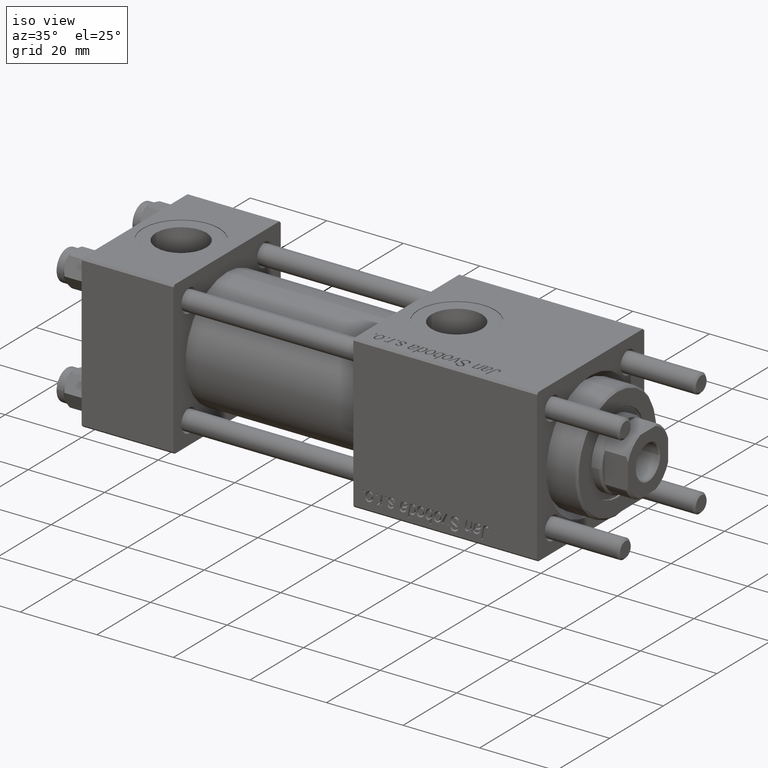
[diagram: clean part render]
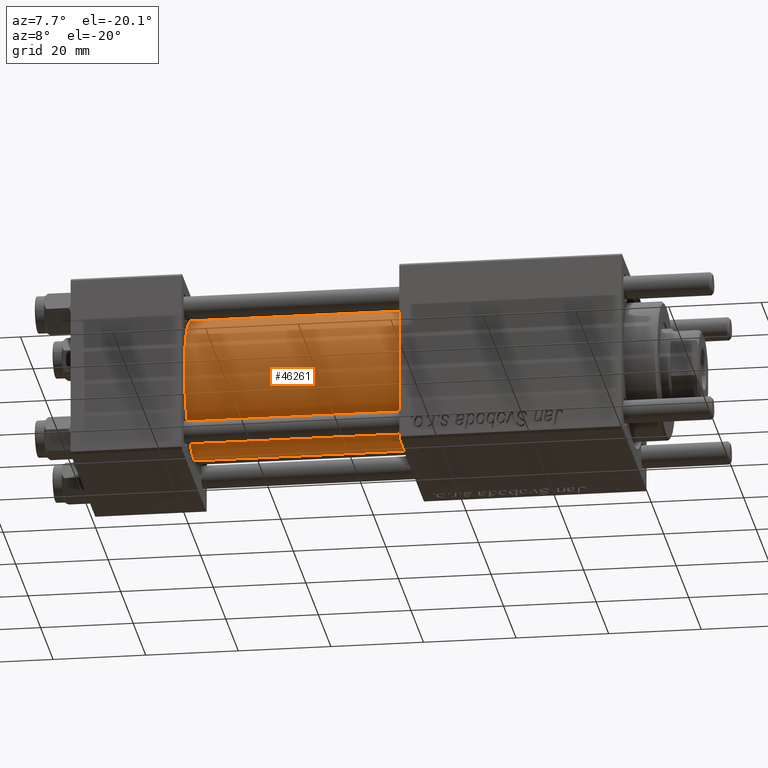
[diagram: tour spotlight — one face highlighted and labeled with its STEP entity id]
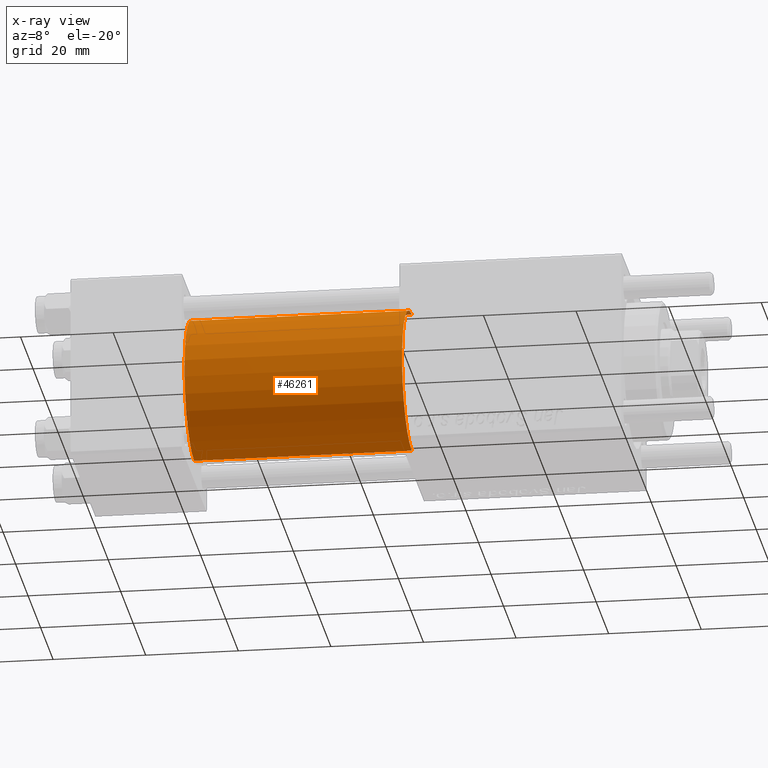
[diagram: x-ray of the same camera — body ghosted, this tour face saturated]
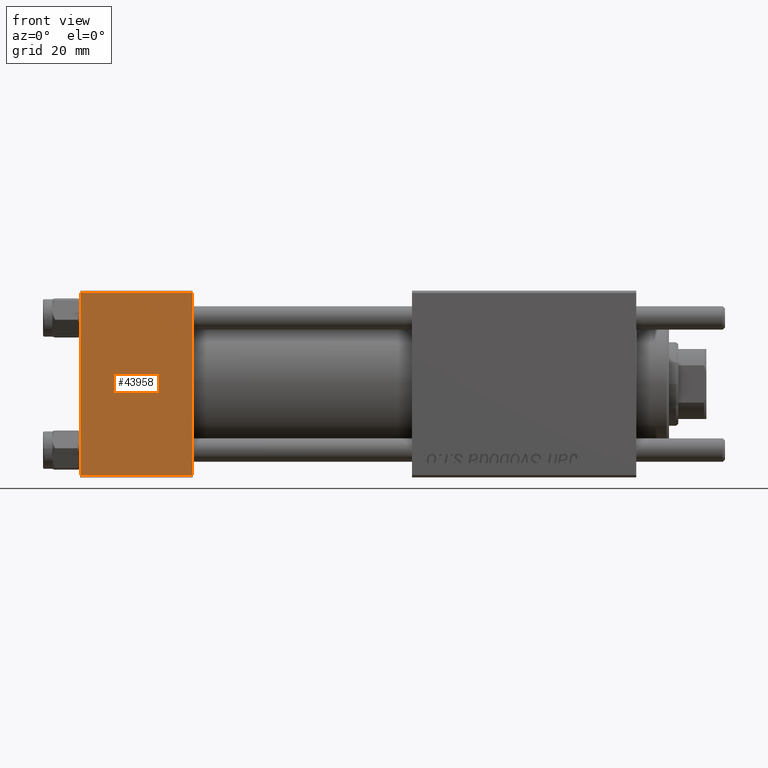
[diagram: tour spotlight — one face highlighted and labeled with its STEP entity id]
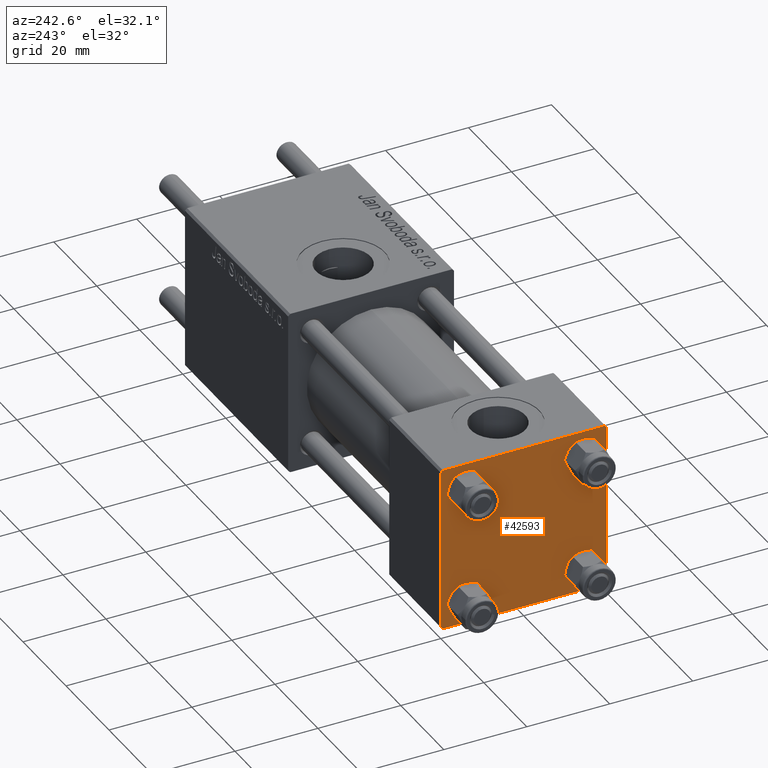
[diagram: tour spotlight — one face highlighted and labeled with its STEP entity id]
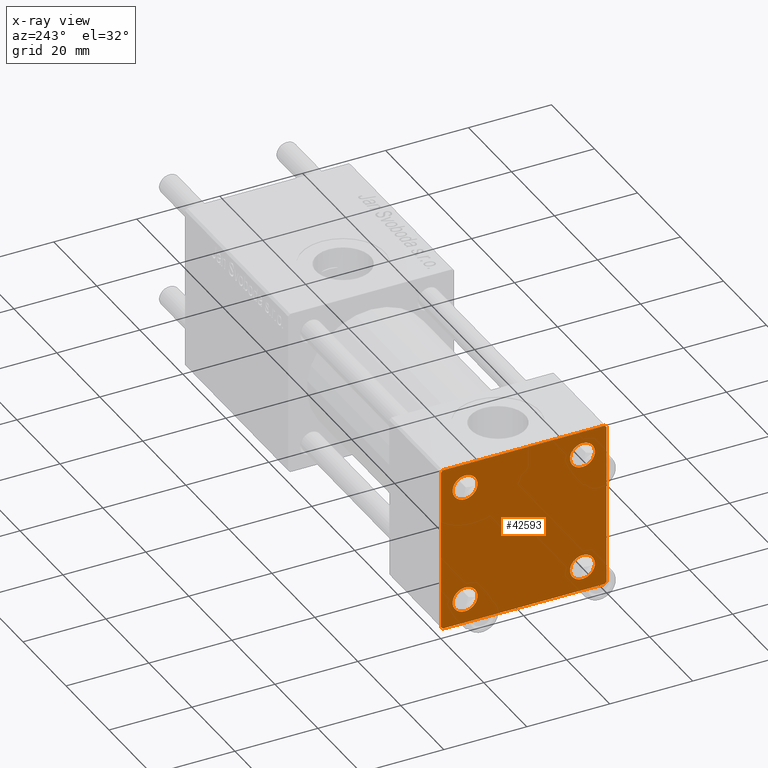
[diagram: x-ray of the same camera — body ghosted, this tour face saturated]
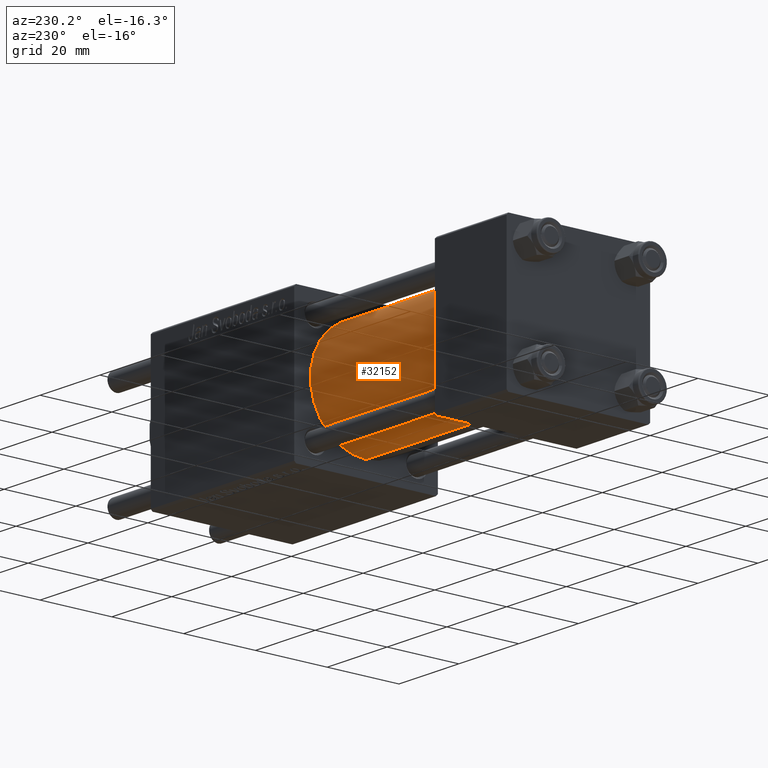
[diagram: tour spotlight — one face highlighted and labeled with its STEP entity id]
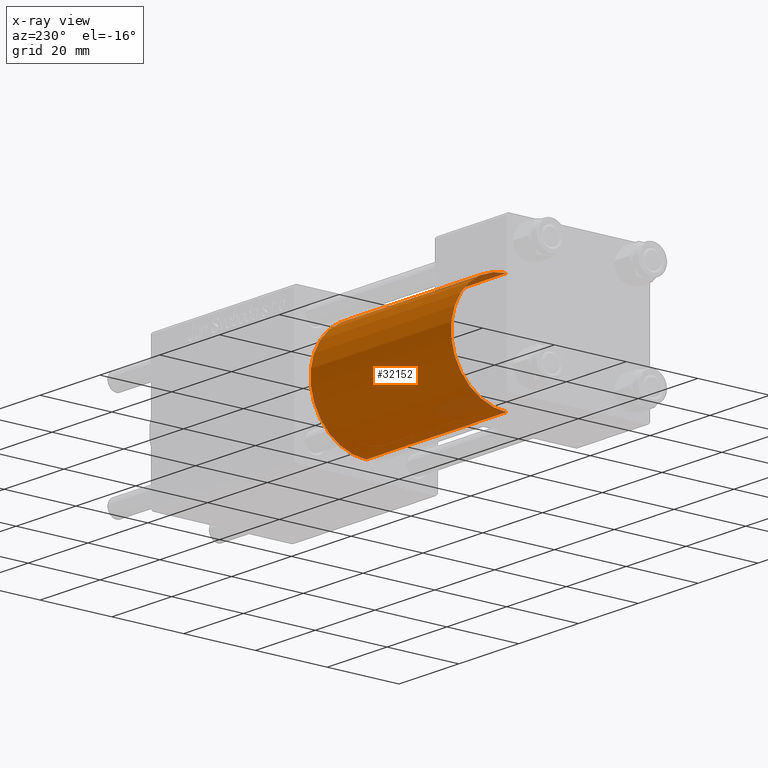
[diagram: x-ray of the same camera — body ghosted, this tour face saturated]
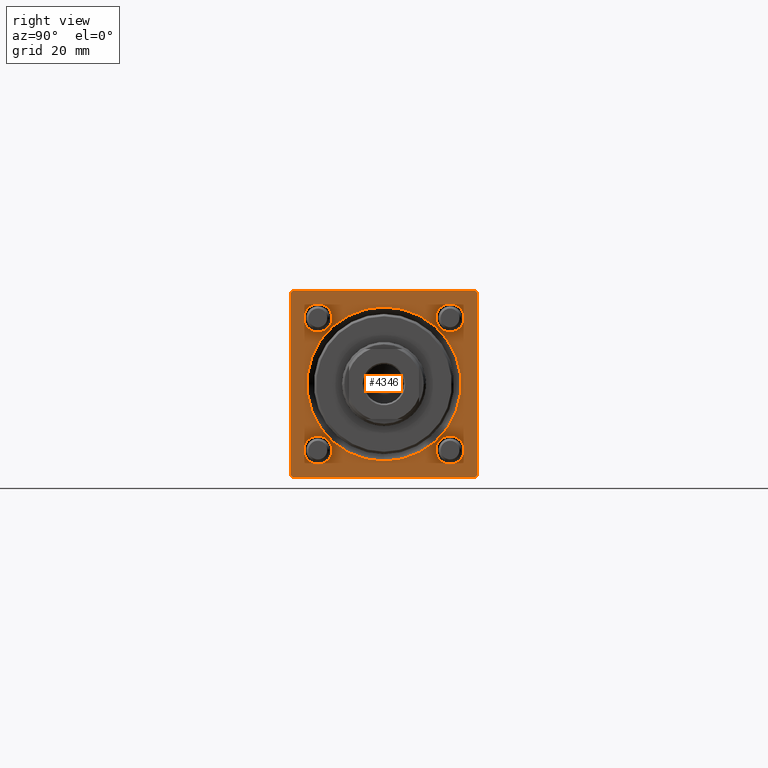
[diagram: tour spotlight — one face highlighted and labeled with its STEP entity id]
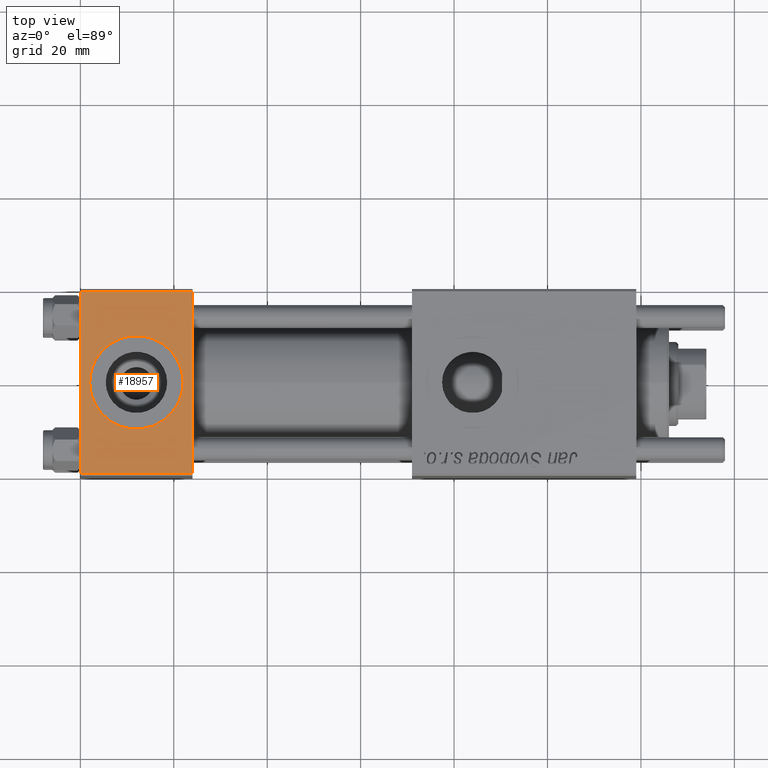
[diagram: tour spotlight — one face highlighted and labeled with its STEP entity id]
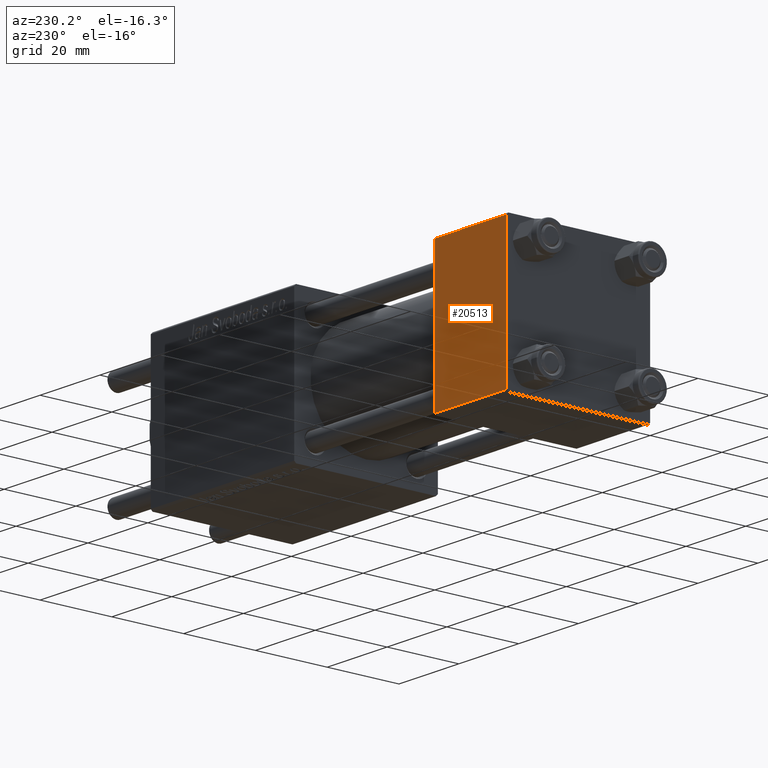
[diagram: tour spotlight — one face highlighted and labeled with its STEP entity id]
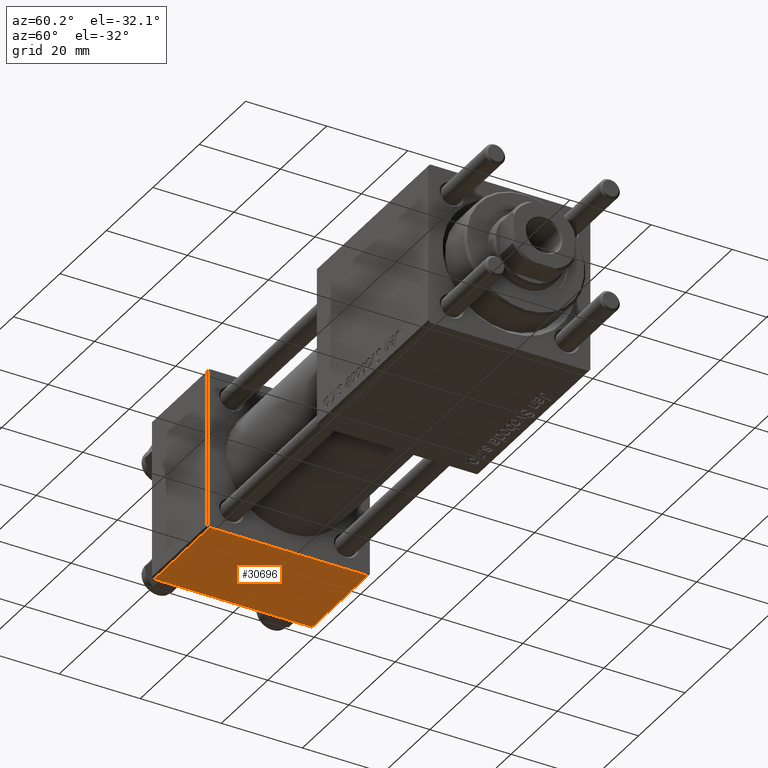
[diagram: tour spotlight — one face highlighted and labeled with its STEP entity id]
A machine part: a face-by-face anatomy tour. The part has 1152 B-rep faces; the first image is the clean iso view, then the 8 largest visible faces are spotlighted one at a time (largest first), each with its STEP entity span.

Face 1 — auxiliary view, entity #46261. An x-ray twin of the same camera follows (body ghosted, this face saturated) — the face is partly hidden behind the body. In plain terms, the highlighted cylindrical surface (partial cylindrical patch) has radius 15.5 mm, axis along (-1, -0, -0).
Definition (entity closure, byte-faithful):
#1520 = DIRECTION ( 'NONE',  ( 0.000000000000000000, 0.000000000000000000, -1.000000000000000000 ) ) ;
#1575 = VERTEX_POINT ( 'NONE', #15069 ) ;
#2191 = AXIS2_PLACEMENT_3D ( 'NONE', #39982, #22784, #26535 ) ;
#3219 = CARTESIAN_POINT ( 'NONE',  ( 71.00000000000001421, -2.602085213965210642E-15, 15.50000000000000000 ) ) ;
#3300 = CARTESIAN_POINT ( 'NONE',  ( 24.00000000000000000, -2.602085213965210642E-15, 0.000000000000000000 ) ) ;
#3892 = VECTOR ( 'NONE', #22242, 1000.000000000000000 ) ;
#3900 = ORIENTED_EDGE ( 'NONE', *, *, #30255, .F. ) ;
#4442 = CIRCLE ( 'NONE', #31012, 15.50000000000000000 ) ;
#6633 = VERTEX_POINT ( 'NONE', #13602 ) ;
#6736 = EDGE_LOOP ( 'NONE', ( #3900, #23735, #55323, #42789 ) ) ;
#8081 = AXIS2_PLACEMENT_3D ( 'NONE', #32490, #41366, #1520 ) ;
#9607 = CARTESIAN_POINT ( 'NONE',  ( 71.00000000000001421, -7.038826752868131828E-16, -15.50000000000000000 ) ) ;
#10623 = EDGE_CURVE ( 'NONE', #24310, #18320, #16311, .T. ) ;
#12176 = EDGE_CURVE ( 'NONE', #1575, #6633, #4442, .T. ) ;
#12392 = LINE ( 'NONE', #3219, #48829 ) ;
#13602 = CARTESIAN_POINT ( 'NONE',  ( 24.00000000000000000, -7.038826752868131828E-16, -15.50000000000000000 ) ) ;
#15069 = CARTESIAN_POINT ( 'NONE',  ( 24.00000000000000000, -2.602085213965210642E-15, 15.50000000000000000 ) ) ;
#16311 = CIRCLE ( 'NONE', #8081, 15.50000000000000000 ) ;
#18320 = VERTEX_POINT ( 'NONE', #44086 ) ;
#21952 = FACE_OUTER_BOUND ( 'NONE', #6736, .T. ) ;
#22242 = DIRECTION ( 'NONE',  ( -1.000000000000000000, -0.000000000000000000, -0.000000000000000000 ) ) ;
#22522 = LINE ( 'NONE', #9607, #3892 ) ;
#22627 = CARTESIAN_POINT ( 'NONE',  ( 71.00000000000001421, -2.602085213965210642E-15, 15.50000000000000000 ) ) ;
#22784 = DIRECTION ( 'NONE',  ( -1.000000000000000000, -0.000000000000000000, -0.000000000000000000 ) ) ;
#23735 = ORIENTED_EDGE ( 'NONE', *, *, #10623, .F. ) ;
#24310 = VERTEX_POINT ( 'NONE', #22627 ) ;
#26535 = DIRECTION ( 'NONE',  ( 0.000000000000000000, 0.000000000000000000, 1.000000000000000000 ) ) ;
#30255 = EDGE_CURVE ( 'NONE', #18320, #6633, #22522, .T. ) ;
#31012 = AXIS2_PLACEMENT_3D ( 'NONE', #3300, #34548, #46876 ) ;
#31982 = EDGE_CURVE ( 'NONE', #24310, #1575, #12392, .T. ) ;
#32490 = CARTESIAN_POINT ( 'NONE',  ( 71.00000000000001421, -2.602085213965210642E-15, 0.000000000000000000 ) ) ;
#34548 = DIRECTION ( 'NONE',  ( 1.000000000000000000, 0.000000000000000000, 0.000000000000000000 ) ) ;
#39982 = CARTESIAN_POINT ( 'NONE',  ( 71.00000000000001421, -2.602085213965210642E-15, 0.000000000000000000 ) ) ;
#41366 = DIRECTION ( 'NONE',  ( 1.000000000000000000, 0.000000000000000000, 0.000000000000000000 ) ) ;
#41923 = DIRECTION ( 'NONE',  ( -1.000000000000000000, -0.000000000000000000, -0.000000000000000000 ) ) ;
#42789 = ORIENTED_EDGE ( 'NONE', *, *, #12176, .T. ) ;
#44086 = CARTESIAN_POINT ( 'NONE',  ( 71.00000000000001421, -7.038826752868131828E-16, -15.50000000000000000 ) ) ;
#44557 = CYLINDRICAL_SURFACE ( 'NONE', #2191, 15.50000000000000000 ) ;
#46261 = ADVANCED_FACE ( 'NONE', ( #21952 ), #44557, .T. ) ;
#46876 = DIRECTION ( 'NONE',  ( 0.000000000000000000, 0.000000000000000000, 1.000000000000000000 ) ) ;
#48829 = VECTOR ( 'NONE', #41923, 1000.000000000000000 ) ;
#55323 = ORIENTED_EDGE ( 'NONE', *, *, #31982, .T. ) ;

Face 2 — front view, entity #43958. In plain terms, the highlighted planar face has unit normal (0, 1, 0).
Definition (entity closure, byte-faithful):
#9530 = VECTOR ( 'NONE', #53173, 1000.000000000000000 ) ;
#11225 = VERTEX_POINT ( 'NONE', #55246 ) ;
#13864 = CARTESIAN_POINT ( 'NONE',  ( 24.00000000000000000, -20.00000000000000355, 19.99999999999998934 ) ) ;
#14322 = LINE ( 'NONE', #45272, #30587 ) ;
#15656 = CARTESIAN_POINT ( 'NONE',  ( 0.000000000000000000, -20.00000000000000355, 19.49999999999998224 ) ) ;
#16595 = CARTESIAN_POINT ( 'NONE',  ( 0.000000000000000000, -20.00000000000000355, 19.99999999999998934 ) ) ;
#19476 = DIRECTION ( 'NONE',  ( 0.000000000000000000, 8.673617379884036705E-17, -1.000000000000000000 ) ) ;
#20328 = LINE ( 'NONE', #16595, #33313 ) ;
#21492 = EDGE_CURVE ( 'NONE', #47087, #11225, #37332, .T. ) ;
#24048 = ORIENTED_EDGE ( 'NONE', *, *, #46276, .T. ) ;
#27162 = EDGE_LOOP ( 'NONE', ( #32902, #30567, #30300, #24048 ) ) ;
#30300 = ORIENTED_EDGE ( 'NONE', *, *, #40104, .F. ) ;
#30567 = ORIENTED_EDGE ( 'NONE', *, *, #21492, .T. ) ;
#30587 = VECTOR ( 'NONE', #19476, 1000.000000000000000 ) ;
#31117 = LINE ( 'NONE', #35693, #9530 ) ;
#31357 = DIRECTION ( 'NONE',  ( -0.000000000000000000, 1.000000000000000000, 8.673617379884036705E-17 ) ) ;
#32902 = ORIENTED_EDGE ( 'NONE', *, *, #44213, .T. ) ;
#33313 = VECTOR ( 'NONE', #34094, 1000.000000000000000 ) ;
#33516 = VERTEX_POINT ( 'NONE', #15656 ) ;
#34094 = DIRECTION ( 'NONE',  ( 0.000000000000000000, 8.673617379884036705E-17, -1.000000000000000000 ) ) ;
#35664 = FACE_OUTER_BOUND ( 'NONE', #27162, .T. ) ;
#35693 = CARTESIAN_POINT ( 'NONE',  ( 24.00000000000000000, -20.00000000000000355, 19.49999999999998224 ) ) ;
#36748 = CARTESIAN_POINT ( 'NONE',  ( 24.00000000000000000, -20.00000000000000000, -19.49999999999999645 ) ) ;
#36840 = CARTESIAN_POINT ( 'NONE',  ( 0.000000000000000000, -20.00000000000000000, -19.49999999999999645 ) ) ;
#37332 = LINE ( 'NONE', #36748, #51383 ) ;
#40104 = EDGE_CURVE ( 'NONE', #51255, #11225, #14322, .T. ) ;
#43958 = ADVANCED_FACE ( 'NONE', ( #35664 ), #53146, .F. ) ;
#44213 = EDGE_CURVE ( 'NONE', #33516, #47087, #20328, .T. ) ;
#44803 = DIRECTION ( 'NONE',  ( 0.000000000000000000, -8.673617379884036705E-17, 1.000000000000000000 ) ) ;
#45272 = CARTESIAN_POINT ( 'NONE',  ( 24.00000000000000000, -20.00000000000000355, 19.99999999999998934 ) ) ;
#46276 = EDGE_CURVE ( 'NONE', #51255, #33516, #31117, .T. ) ;
#47087 = VERTEX_POINT ( 'NONE', #36840 ) ;
#50218 = DIRECTION ( 'NONE',  ( 1.000000000000000000, 0.000000000000000000, 0.000000000000000000 ) ) ;
#51255 = VERTEX_POINT ( 'NONE', #56409 ) ;
#51383 = VECTOR ( 'NONE', #50218, 1000.000000000000000 ) ;
#53146 = PLANE ( 'NONE',  #54330 ) ;
#53173 = DIRECTION ( 'NONE',  ( -1.000000000000000000, 0.000000000000000000, 0.000000000000000000 ) ) ;
#54330 = AXIS2_PLACEMENT_3D ( 'NONE', #13864, #31357, #44803 ) ;
#55246 = CARTESIAN_POINT ( 'NONE',  ( 24.00000000000000000, -20.00000000000000000, -19.49999999999999645 ) ) ;
#56409 = CARTESIAN_POINT ( 'NONE',  ( 24.00000000000000000, -20.00000000000000355, 19.49999999999998224 ) ) ;

Face 3 — auxiliary view, entity #42593. An x-ray twin of the same camera follows (body ghosted, this face saturated) — the face is partly hidden behind the body. In plain terms, the highlighted planar face has unit normal (-1, 0, 0).
Definition (entity closure, byte-faithful):
#36 = VERTEX_POINT ( 'NONE', #17544 ) ;
#282 = VERTEX_POINT ( 'NONE', #51337 ) ;
#729 = CARTESIAN_POINT ( 'NONE',  ( 0.000000000000000000, -14.14999999999999503, 17.14999999999998792 ) ) ;
#755 = DIRECTION ( 'NONE',  ( 0.000000000000000000, -1.000000000000000000, -2.602085213965210149E-16 ) ) ;
#970 = ORIENTED_EDGE ( 'NONE', *, *, #38393, .T. ) ;
#1861 = VERTEX_POINT ( 'NONE', #29064 ) ;
#2283 = EDGE_LOOP ( 'NONE', ( #30718, #970 ) ) ;
#3073 = CIRCLE ( 'NONE', #35128, 2.999999999999983569 ) ;
#3629 = FACE_BOUND ( 'NONE', #22433, .T. ) ;
#3967 = DIRECTION ( 'NONE',  ( 0.000000000000000000, 0.000000000000000000, 1.000000000000000000 ) ) ;
#3984 = VERTEX_POINT ( 'NONE', #10047 ) ;
#4124 = DIRECTION ( 'NONE',  ( 1.000000000000000000, 0.000000000000000000, 0.000000000000000000 ) ) ;
#4478 = DIRECTION ( 'NONE',  ( 0.000000000000000000, 0.000000000000000000, 1.000000000000000000 ) ) ;
#4913 = CARTESIAN_POINT ( 'NONE',  ( 0.000000000000000000, -19.75000000000020961, -19.74999999999979394 ) ) ;
#4985 = DIRECTION ( 'NONE',  ( 0.000000000000000000, 0.000000000000000000, 1.000000000000000000 ) ) ;
#5290 = VERTEX_POINT ( 'NONE', #44451 ) ;
#6593 = DIRECTION ( 'NONE',  ( 0.000000000000000000, 0.000000000000000000, 1.000000000000000000 ) ) ;
#6880 = CARTESIAN_POINT ( 'NONE',  ( 0.000000000000000000, -14.14999999999999503, 14.15000000000000391 ) ) ;
#7182 = AXIS2_PLACEMENT_3D ( 'NONE', #38762, #29884, #37921 ) ;
#7475 = CARTESIAN_POINT ( 'NONE',  ( 0.000000000000000000, 14.14999999999999858, -17.14999999999998437 ) ) ;
#7772 = AXIS2_PLACEMENT_3D ( 'NONE', #6880, #41859, #6593 ) ;
#8435 = CARTESIAN_POINT ( 'NONE',  ( 0.000000000000000000, 20.00000000000000000, -19.50000000000002132 ) ) ;
#8493 = FACE_OUTER_BOUND ( 'NONE', #19421, .T. ) ;
#8724 = CARTESIAN_POINT ( 'NONE',  ( 0.000000000000000000, 20.00000000000000000, 20.00000000000000000 ) ) ;
#8802 = EDGE_CURVE ( 'NONE', #51592, #28984, #18950, .T. ) ;
#9027 = ORIENTED_EDGE ( 'NONE', *, *, #12365, .T. ) ;
#9067 = CIRCLE ( 'NONE', #9952, 3.000000000000004441 ) ;
#9072 = LINE ( 'NONE', #9630, #16632 ) ;
#9378 = LINE ( 'NONE', #44622, #42371 ) ;
#9630 = CARTESIAN_POINT ( 'NONE',  ( -0.000000000000000000, -19.74999999999992539, 19.75000000000006395 ) ) ;
#9887 = CARTESIAN_POINT ( 'NONE',  ( 0.000000000000000000, -19.49999999999999289, 19.99999999999998934 ) ) ;
#9908 = CARTESIAN_POINT ( 'NONE',  ( 0.000000000000000000, -19.50000000000000711, -20.00000000000000000 ) ) ;
#9952 = AXIS2_PLACEMENT_3D ( 'NONE', #56150, #43241, #3967 ) ;
#9997 = AXIS2_PLACEMENT_3D ( 'NONE', #32508, #40535, #18753 ) ;
#10047 = CARTESIAN_POINT ( 'NONE',  ( 0.000000000000000000, 14.14999999999999858, 11.15000000000001990 ) ) ;
#10505 = AXIS2_PLACEMENT_3D ( 'NONE', #13358, #56655, #25992 ) ;
#10777 = CARTESIAN_POINT ( 'NONE',  ( 0.000000000000000000, 14.14999999999999858, -11.15000000000001812 ) ) ;
#12365 = EDGE_CURVE ( 'NONE', #35136, #282, #34653, .T. ) ;
#13014 = DIRECTION ( 'NONE',  ( 0.000000000000000000, 0.000000000000000000, 1.000000000000000000 ) ) ;
#13228 = DIRECTION ( 'NONE',  ( -0.000000000000000000, -0.7071067811865524577, -0.7071067811865426878 ) ) ;
#13358 = CARTESIAN_POINT ( 'NONE',  ( 0.000000000000000000, 0.000000000000000000, 0.000000000000000000 ) ) ;
#13398 = DIRECTION ( 'NONE',  ( 0.000000000000000000, 0.7071067811865425767, -0.7071067811865525687 ) ) ;
#13651 = DIRECTION ( 'NONE',  ( -0.000000000000000000, 0.7071067811865500152, 0.7071067811865451302 ) ) ;
#14233 = EDGE_CURVE ( 'NONE', #44206, #5290, #9067, .T. ) ;
#14941 = ORIENTED_EDGE ( 'NONE', *, *, #35422, .T. ) ;
#15135 = EDGE_CURVE ( 'NONE', #1861, #15364, #46361, .T. ) ;
#15364 = VERTEX_POINT ( 'NONE', #9908 ) ;
#15432 = AXIS2_PLACEMENT_3D ( 'NONE', #48575, #44254, #4985 ) ;
#15656 = CARTESIAN_POINT ( 'NONE',  ( 0.000000000000000000, -20.00000000000000355, 19.49999999999998224 ) ) ;
#16172 = EDGE_CURVE ( 'NONE', #42616, #3984, #18259, .T. ) ;
#16328 = CARTESIAN_POINT ( 'NONE',  ( 0.000000000000000000, -14.14999999999999503, -14.15000000000000391 ) ) ;
#16595 = CARTESIAN_POINT ( 'NONE',  ( 0.000000000000000000, -20.00000000000000355, 19.99999999999998934 ) ) ;
#16632 = VECTOR ( 'NONE', #13651, 1000.000000000000114 ) ;
#17256 = DIRECTION ( 'NONE',  ( 0.000000000000000000, -0.7071067811865401342, 0.7071067811865549002 ) ) ;
#17376 = PLANE ( 'NONE',  #10505 ) ;
#17544 = CARTESIAN_POINT ( 'NONE',  ( 0.000000000000000000, 20.00000000000000000, 19.49999999999999289 ) ) ;
#17963 = VERTEX_POINT ( 'NONE', #9887 ) ;
#18259 = CIRCLE ( 'NONE', #9997, 2.999999999999983569 ) ;
#18753 = DIRECTION ( 'NONE',  ( 0.000000000000000000, 0.000000000000000000, 1.000000000000000000 ) ) ;
#18829 = EDGE_LOOP ( 'NONE', ( #9027, #46209 ) ) ;
#18950 = CIRCLE ( 'NONE', #7182, 2.999999999999983569 ) ;
#19421 = EDGE_LOOP ( 'NONE', ( #51367, #45039, #28675, #30994, #21592, #31822, #49010, #33866 ) ) ;
#20129 = EDGE_CURVE ( 'NONE', #31654, #1861, #43902, .T. ) ;
#20328 = LINE ( 'NONE', #16595, #33313 ) ;
#20955 = VERTEX_POINT ( 'NONE', #34298 ) ;
#21578 = VECTOR ( 'NONE', #21927, 1000.000000000000000 ) ;
#21592 = ORIENTED_EDGE ( 'NONE', *, *, #44213, .F. ) ;
#21927 = DIRECTION ( 'NONE',  ( 0.000000000000000000, 0.000000000000000000, -1.000000000000000000 ) ) ;
#22433 = EDGE_LOOP ( 'NONE', ( #25935, #48011 ) ) ;
#22923 = EDGE_CURVE ( 'NONE', #33516, #17963, #9072, .T. ) ;
#23871 = VECTOR ( 'NONE', #13228, 1000.000000000000000 ) ;
#25347 = EDGE_CURVE ( 'NONE', #20955, #36, #9378, .T. ) ;
#25935 = ORIENTED_EDGE ( 'NONE', *, *, #35108, .T. ) ;
#25992 = DIRECTION ( 'NONE',  ( -0.000000000000000000, 0.000000000000000000, 1.000000000000000000 ) ) ;
#26278 = DIRECTION ( 'NONE',  ( 1.000000000000000000, 0.000000000000000000, 0.000000000000000000 ) ) ;
#26776 = CARTESIAN_POINT ( 'NONE',  ( 0.000000000000000000, 14.14999999999999858, -14.15000000000000036 ) ) ;
#26943 = AXIS2_PLACEMENT_3D ( 'NONE', #26776, #4124, #13014 ) ;
#28675 = ORIENTED_EDGE ( 'NONE', *, *, #15135, .T. ) ;
#28984 = VERTEX_POINT ( 'NONE', #7475 ) ;
#29064 = CARTESIAN_POINT ( 'NONE',  ( 0.000000000000000000, 19.50000000000000711, -20.00000000000000711 ) ) ;
#29248 = VECTOR ( 'NONE', #33761, 1000.000000000000000 ) ;
#29267 = DIRECTION ( 'NONE',  ( 1.000000000000000000, 0.000000000000000000, 0.000000000000000000 ) ) ;
#29556 = DIRECTION ( 'NONE',  ( 0.000000000000000000, 0.000000000000000000, 1.000000000000000000 ) ) ;
#29884 = DIRECTION ( 'NONE',  ( 1.000000000000000000, 0.000000000000000000, 0.000000000000000000 ) ) ;
#30446 = CARTESIAN_POINT ( 'NONE',  ( 0.000000000000000000, -14.14999999999999503, -17.15000000000000924 ) ) ;
#30718 = ORIENTED_EDGE ( 'NONE', *, *, #16172, .T. ) ;
#30994 = ORIENTED_EDGE ( 'NONE', *, *, #49816, .T. ) ;
#31654 = VERTEX_POINT ( 'NONE', #8435 ) ;
#31822 = ORIENTED_EDGE ( 'NONE', *, *, #22923, .T. ) ;
#32483 = CIRCLE ( 'NONE', #7772, 2.999999999999983569 ) ;
#32508 = CARTESIAN_POINT ( 'NONE',  ( 0.000000000000000000, 14.14999999999999858, 14.15000000000000036 ) ) ;
#33313 = VECTOR ( 'NONE', #34094, 1000.000000000000000 ) ;
#33516 = VERTEX_POINT ( 'NONE', #15656 ) ;
#33761 = DIRECTION ( 'NONE',  ( 0.000000000000000000, -1.000000000000000000, 1.734723475976807094E-16 ) ) ;
#33866 = ORIENTED_EDGE ( 'NONE', *, *, #25347, .T. ) ;
#34094 = DIRECTION ( 'NONE',  ( 0.000000000000000000, 8.673617379884036705E-17, -1.000000000000000000 ) ) ;
#34298 = CARTESIAN_POINT ( 'NONE',  ( 0.000000000000000000, 19.50000000000000000, 20.00000000000000000 ) ) ;
#34600 = FACE_BOUND ( 'NONE', #43011, .T. ) ;
#34653 = CIRCLE ( 'NONE', #15432, 2.999999999999983569 ) ;
#34877 = CARTESIAN_POINT ( 'NONE',  ( 0.000000000000000000, 14.14999999999999858, 17.14999999999998437 ) ) ;
#35013 = ORIENTED_EDGE ( 'NONE', *, *, #8802, .T. ) ;
#35108 = EDGE_CURVE ( 'NONE', #5290, #44206, #47072, .T. ) ;
#35128 = AXIS2_PLACEMENT_3D ( 'NONE', #52183, #29267, #29556 ) ;
#35136 = VERTEX_POINT ( 'NONE', #729 ) ;
#35192 = LINE ( 'NONE', #48926, #44389 ) ;
#35422 = EDGE_CURVE ( 'NONE', #28984, #51592, #45243, .T. ) ;
#36209 = VECTOR ( 'NONE', #17256, 1000.000000000000000 ) ;
#36840 = CARTESIAN_POINT ( 'NONE',  ( 0.000000000000000000, -20.00000000000000000, -19.49999999999999645 ) ) ;
#37921 = DIRECTION ( 'NONE',  ( 0.000000000000000000, 0.000000000000000000, 1.000000000000000000 ) ) ;
#38393 = EDGE_CURVE ( 'NONE', #3984, #42616, #3073, .T. ) ;
#38762 = CARTESIAN_POINT ( 'NONE',  ( 0.000000000000000000, 14.14999999999999858, -14.15000000000000036 ) ) ;
#39609 = LINE ( 'NONE', #4913, #36209 ) ;
#40535 = DIRECTION ( 'NONE',  ( 1.000000000000000000, 0.000000000000000000, 0.000000000000000000 ) ) ;
#41770 = CARTESIAN_POINT ( 'NONE',  ( 0.000000000000000000, 20.00000000000000000, -20.00000000000000711 ) ) ;
#41859 = DIRECTION ( 'NONE',  ( 1.000000000000000000, 0.000000000000000000, 0.000000000000000000 ) ) ;
#42371 = VECTOR ( 'NONE', #13398, 999.9999999999998863 ) ;
#42593 = ADVANCED_FACE ( 'NONE', ( #52924, #3629, #34600, #52081, #8493 ), #17376, .T. ) ;
#42616 = VERTEX_POINT ( 'NONE', #34877 ) ;
#43011 = EDGE_LOOP ( 'NONE', ( #35013, #14941 ) ) ;
#43241 = DIRECTION ( 'NONE',  ( 1.000000000000000000, 0.000000000000000000, 0.000000000000000000 ) ) ;
#43902 = LINE ( 'NONE', #52510, #23871 ) ;
#44206 = VERTEX_POINT ( 'NONE', #30446 ) ;
#44213 = EDGE_CURVE ( 'NONE', #33516, #47087, #20328, .T. ) ;
#44254 = DIRECTION ( 'NONE',  ( 1.000000000000000000, 0.000000000000000000, 0.000000000000000000 ) ) ;
#44389 = VECTOR ( 'NONE', #755, 1000.000000000000000 ) ;
#44451 = CARTESIAN_POINT ( 'NONE',  ( 0.000000000000000000, -14.14999999999999503, -11.15000000000000036 ) ) ;
#44622 = CARTESIAN_POINT ( 'NONE',  ( -0.000000000000000000, 19.75000000000013500, 19.74999999999986144 ) ) ;
#45039 = ORIENTED_EDGE ( 'NONE', *, *, #20129, .T. ) ;
#45179 = EDGE_CURVE ( 'NONE', #20955, #17963, #35192, .T. ) ;
#45243 = CIRCLE ( 'NONE', #26943, 2.999999999999983569 ) ;
#46209 = ORIENTED_EDGE ( 'NONE', *, *, #48412, .T. ) ;
#46361 = LINE ( 'NONE', #41770, #29248 ) ;
#47072 = CIRCLE ( 'NONE', #51654, 3.000000000000004441 ) ;
#47087 = VERTEX_POINT ( 'NONE', #36840 ) ;
#48003 = LINE ( 'NONE', #8724, #21578 ) ;
#48011 = ORIENTED_EDGE ( 'NONE', *, *, #14233, .T. ) ;
#48412 = EDGE_CURVE ( 'NONE', #282, #35136, #32483, .T. ) ;
#48575 = CARTESIAN_POINT ( 'NONE',  ( 0.000000000000000000, -14.14999999999999503, 14.15000000000000391 ) ) ;
#48926 = CARTESIAN_POINT ( 'NONE',  ( 0.000000000000000000, 20.00000000000000000, 20.00000000000000000 ) ) ;
#49010 = ORIENTED_EDGE ( 'NONE', *, *, #45179, .F. ) ;
#49512 = EDGE_CURVE ( 'NONE', #36, #31654, #48003, .T. ) ;
#49816 = EDGE_CURVE ( 'NONE', #15364, #47087, #39609, .T. ) ;
#51337 = CARTESIAN_POINT ( 'NONE',  ( 0.000000000000000000, -14.14999999999999503, 11.15000000000002345 ) ) ;
#51367 = ORIENTED_EDGE ( 'NONE', *, *, #49512, .T. ) ;
#51592 = VERTEX_POINT ( 'NONE', #10777 ) ;
#51654 = AXIS2_PLACEMENT_3D ( 'NONE', #16328, #26278, #4478 ) ;
#52081 = FACE_BOUND ( 'NONE', #2283, .T. ) ;
#52183 = CARTESIAN_POINT ( 'NONE',  ( 0.000000000000000000, 14.14999999999999858, 14.15000000000000036 ) ) ;
#52510 = CARTESIAN_POINT ( 'NONE',  ( -0.000000000000000000, 19.74999999999986855, -19.75000000000014211 ) ) ;
#52924 = FACE_BOUND ( 'NONE', #18829, .T. ) ;
#56150 = CARTESIAN_POINT ( 'NONE',  ( 0.000000000000000000, -14.14999999999999503, -14.15000000000000391 ) ) ;
#56655 = DIRECTION ( 'NONE',  ( -1.000000000000000000, 0.000000000000000000, -0.000000000000000000 ) ) ;

Face 4 — auxiliary view, entity #32152. An x-ray twin of the same camera follows (body ghosted, this face saturated) — the face is partly hidden behind the body. In plain terms, the highlighted cylindrical surface (partial cylindrical patch) has radius 15.5 mm, axis along (-1, -0, -0).
Definition (entity closure, byte-faithful):
#1575 = VERTEX_POINT ( 'NONE', #15069 ) ;
#2764 = ORIENTED_EDGE ( 'NONE', *, *, #15846, .T. ) ;
#3219 = CARTESIAN_POINT ( 'NONE',  ( 71.00000000000001421, -2.602085213965210642E-15, 15.50000000000000000 ) ) ;
#3687 = ORIENTED_EDGE ( 'NONE', *, *, #31982, .F. ) ;
#3892 = VECTOR ( 'NONE', #22242, 1000.000000000000000 ) ;
#5735 = DIRECTION ( 'NONE',  ( -1.000000000000000000, -0.000000000000000000, -0.000000000000000000 ) ) ;
#6633 = VERTEX_POINT ( 'NONE', #13602 ) ;
#7118 = DIRECTION ( 'NONE',  ( 1.000000000000000000, 0.000000000000000000, 0.000000000000000000 ) ) ;
#7492 = CIRCLE ( 'NONE', #36797, 15.50000000000000000 ) ;
#9607 = CARTESIAN_POINT ( 'NONE',  ( 71.00000000000001421, -7.038826752868131828E-16, -15.50000000000000000 ) ) ;
#10612 = DIRECTION ( 'NONE',  ( 0.000000000000000000, 0.000000000000000000, 1.000000000000000000 ) ) ;
#12392 = LINE ( 'NONE', #3219, #48829 ) ;
#12705 = ORIENTED_EDGE ( 'NONE', *, *, #30255, .T. ) ;
#13602 = CARTESIAN_POINT ( 'NONE',  ( 24.00000000000000000, -7.038826752868131828E-16, -15.50000000000000000 ) ) ;
#15069 = CARTESIAN_POINT ( 'NONE',  ( 24.00000000000000000, -2.602085213965210642E-15, 15.50000000000000000 ) ) ;
#15846 = EDGE_CURVE ( 'NONE', #6633, #1575, #21935, .T. ) ;
#16644 = DIRECTION ( 'NONE',  ( 1.000000000000000000, 0.000000000000000000, 0.000000000000000000 ) ) ;
#18320 = VERTEX_POINT ( 'NONE', #44086 ) ;
#21935 = CIRCLE ( 'NONE', #40238, 15.50000000000000000 ) ;
#22242 = DIRECTION ( 'NONE',  ( -1.000000000000000000, -0.000000000000000000, -0.000000000000000000 ) ) ;
#22522 = LINE ( 'NONE', #9607, #3892 ) ;
#22627 = CARTESIAN_POINT ( 'NONE',  ( 71.00000000000001421, -2.602085213965210642E-15, 15.50000000000000000 ) ) ;
#24310 = VERTEX_POINT ( 'NONE', #22627 ) ;
#25485 = DIRECTION ( 'NONE',  ( 0.000000000000000000, 0.000000000000000000, 1.000000000000000000 ) ) ;
#28916 = EDGE_CURVE ( 'NONE', #18320, #24310, #7492, .T. ) ;
#30255 = EDGE_CURVE ( 'NONE', #18320, #6633, #22522, .T. ) ;
#31982 = EDGE_CURVE ( 'NONE', #24310, #1575, #12392, .T. ) ;
#32152 = ADVANCED_FACE ( 'NONE', ( #45581 ), #45861, .T. ) ;
#36797 = AXIS2_PLACEMENT_3D ( 'NONE', #56483, #16644, #51064 ) ;
#40238 = AXIS2_PLACEMENT_3D ( 'NONE', #46398, #7118, #25485 ) ;
#41923 = DIRECTION ( 'NONE',  ( -1.000000000000000000, -0.000000000000000000, -0.000000000000000000 ) ) ;
#42657 = ORIENTED_EDGE ( 'NONE', *, *, #28916, .F. ) ;
#44086 = CARTESIAN_POINT ( 'NONE',  ( 71.00000000000001421, -7.038826752868131828E-16, -15.50000000000000000 ) ) ;
#45016 = CARTESIAN_POINT ( 'NONE',  ( 71.00000000000001421, -2.602085213965210642E-15, 0.000000000000000000 ) ) ;
#45581 = FACE_OUTER_BOUND ( 'NONE', #51344, .T. ) ;
#45861 = CYLINDRICAL_SURFACE ( 'NONE', #46995, 15.50000000000000000 ) ;
#46398 = CARTESIAN_POINT ( 'NONE',  ( 24.00000000000000000, -2.602085213965210642E-15, 0.000000000000000000 ) ) ;
#46995 = AXIS2_PLACEMENT_3D ( 'NONE', #45016, #5735, #10612 ) ;
#48829 = VECTOR ( 'NONE', #41923, 1000.000000000000000 ) ;
#51064 = DIRECTION ( 'NONE',  ( 0.000000000000000000, 0.000000000000000000, -1.000000000000000000 ) ) ;
#51344 = EDGE_LOOP ( 'NONE', ( #42657, #12705, #2764, #3687 ) ) ;
#56483 = CARTESIAN_POINT ( 'NONE',  ( 71.00000000000001421, -2.602085213965210642E-15, 0.000000000000000000 ) ) ;

Face 5 — right view, entity #4346. In plain terms, the highlighted planar face has unit normal (-1, 0, 0).
Definition (entity closure, byte-faithful):
#408 = FACE_BOUND ( 'NONE', #37171, .T. ) ;
#677 = PLANE ( 'NONE',  #18954 ) ;
#1700 = CARTESIAN_POINT ( 'NONE',  ( 119.0000000000000142, 19.99999999999999645, 20.00000000000000000 ) ) ;
#2181 = DIRECTION ( 'NONE',  ( -1.000000000000000000, -0.000000000000000000, -0.000000000000000000 ) ) ;
#3417 = CIRCLE ( 'NONE', #6140, 3.000000000000004441 ) ;
#3627 = EDGE_CURVE ( 'NONE', #15208, #4775, #52869, .T. ) ;
#3955 = EDGE_CURVE ( 'NONE', #22215, #27975, #31560, .T. ) ;
#4346 = ADVANCED_FACE ( 'NONE', ( #26516, #408, #22491, #31095, #25944, #18169 ), #677, .F. ) ;
#4560 = CARTESIAN_POINT ( 'NONE',  ( 119.0000000000000142, 19.49999999999999645, -20.00000000000000000 ) ) ;
#4686 = VERTEX_POINT ( 'NONE', #13238 ) ;
#4775 = VERTEX_POINT ( 'NONE', #44743 ) ;
#4826 = ORIENTED_EDGE ( 'NONE', *, *, #38904, .T. ) ;
#5473 = DIRECTION ( 'NONE',  ( -0.000000000000000000, -0.7071067811865573427, -0.7071067811865376918 ) ) ;
#6140 = AXIS2_PLACEMENT_3D ( 'NONE', #27122, #13924, #22264 ) ;
#6526 = DIRECTION ( 'NONE',  ( -1.000000000000000000, -0.000000000000000000, -0.000000000000000000 ) ) ;
#6665 = VECTOR ( 'NONE', #41470, 1000.000000000000000 ) ;
#6976 = VECTOR ( 'NONE', #9876, 999.9999999999998863 ) ;
#8266 = EDGE_CURVE ( 'NONE', #14506, #12073, #3417, .T. ) ;
#8911 = AXIS2_PLACEMENT_3D ( 'NONE', #9988, #6526, #45511 ) ;
#9338 = CARTESIAN_POINT ( 'NONE',  ( 119.0000000000000142, 14.15000000000000036, -17.15000000000000568 ) ) ;
#9876 = DIRECTION ( 'NONE',  ( 0.000000000000000000, -0.7071067811865574537, 0.7071067811865376918 ) ) ;
#9988 = CARTESIAN_POINT ( 'NONE',  ( 119.0000000000000142, -14.15000000000000036, 14.15000000000000036 ) ) ;
#10028 = ORIENTED_EDGE ( 'NONE', *, *, #30882, .T. ) ;
#10064 = LINE ( 'NONE', #30747, #22235 ) ;
#10262 = VECTOR ( 'NONE', #44421, 1000.000000000000000 ) ;
#10392 = DIRECTION ( 'NONE',  ( -1.000000000000000000, -0.000000000000000000, -0.000000000000000000 ) ) ;
#10880 = DIRECTION ( 'NONE',  ( 0.000000000000000000, 0.000000000000000000, -1.000000000000000000 ) ) ;
#11025 = LINE ( 'NONE', #23081, #43021 ) ;
#12073 = VERTEX_POINT ( 'NONE', #40577 ) ;
#12213 = CARTESIAN_POINT ( 'NONE',  ( 119.0000000000000142, 19.49999999999996803, 20.00000000000000000 ) ) ;
#12246 = VECTOR ( 'NONE', #10880, 1000.000000000000000 ) ;
#13238 = CARTESIAN_POINT ( 'NONE',  ( 119.0000000000000142, -14.15000000000000036, 11.15000000000002700 ) ) ;
#13413 = CIRCLE ( 'NONE', #44504, 16.50000000000001421 ) ;
#13626 = ORIENTED_EDGE ( 'NONE', *, *, #3955, .T. ) ;
#13924 = DIRECTION ( 'NONE',  ( -1.000000000000000000, -0.000000000000000000, -0.000000000000000000 ) ) ;
#13991 = CARTESIAN_POINT ( 'NONE',  ( 119.0000000000000142, -20.00000000000000355, 19.50000000000002487 ) ) ;
#14024 = AXIS2_PLACEMENT_3D ( 'NONE', #52626, #14172, #22236 ) ;
#14115 = CARTESIAN_POINT ( 'NONE',  ( 119.0000000000000142, 14.15000000000000036, 14.15000000000000036 ) ) ;
#14172 = DIRECTION ( 'NONE',  ( -1.000000000000000000, -0.000000000000000000, -0.000000000000000000 ) ) ;
#14183 = CARTESIAN_POINT ( 'NONE',  ( 119.0000000000000142, -19.50000000000002487, -20.00000000000000000 ) ) ;
#14369 = VECTOR ( 'NONE', #44178, 999.9999999999998863 ) ;
#14506 = VERTEX_POINT ( 'NONE', #9338 ) ;
#14730 = CARTESIAN_POINT ( 'NONE',  ( 119.0000000000000142, -14.15000000000000036, -14.15000000000000036 ) ) ;
#15208 = VERTEX_POINT ( 'NONE', #25999 ) ;
#15296 = DIRECTION ( 'NONE',  ( 0.000000000000000000, 0.000000000000000000, 1.000000000000000000 ) ) ;
#17483 = EDGE_LOOP ( 'NONE', ( #46996, #40316 ) ) ;
#17524 = CIRCLE ( 'NONE', #49523, 3.000000000000004441 ) ;
#17526 = EDGE_CURVE ( 'NONE', #47915, #22215, #11025, .T. ) ;
#18169 = FACE_OUTER_BOUND ( 'NONE', #33184, .T. ) ;
#18245 = VERTEX_POINT ( 'NONE', #31609 ) ;
#18547 = DIRECTION ( 'NONE',  ( -1.000000000000000000, -0.000000000000000000, -0.000000000000000000 ) ) ;
#18954 = AXIS2_PLACEMENT_3D ( 'NONE', #35670, #53153, #30810 ) ;
#20311 = CIRCLE ( 'NONE', #40465, 3.000000000000000888 ) ;
#20653 = CARTESIAN_POINT ( 'NONE',  ( 119.0000000000000142, -14.15000000000000036, 14.15000000000000036 ) ) ;
#20936 = DIRECTION ( 'NONE',  ( -1.000000000000000000, -0.000000000000000000, -0.000000000000000000 ) ) ;
#21178 = VECTOR ( 'NONE', #25077, 1000.000000000000114 ) ;
#21219 = EDGE_CURVE ( 'NONE', #44617, #23773, #17524, .T. ) ;
#21368 = EDGE_CURVE ( 'NONE', #23392, #40144, #52277, .T. ) ;
#22215 = VERTEX_POINT ( 'NONE', #55103 ) ;
#22235 = VECTOR ( 'NONE', #5473, 1000.000000000000114 ) ;
#22236 = DIRECTION ( 'NONE',  ( 0.000000000000000000, 0.000000000000000000, 1.000000000000000000 ) ) ;
#22264 = DIRECTION ( 'NONE',  ( 0.000000000000000000, 0.000000000000000000, 1.000000000000000000 ) ) ;
#22491 = FACE_BOUND ( 'NONE', #17483, .T. ) ;
#22551 = EDGE_LOOP ( 'NONE', ( #52057, #46194 ) ) ;
#23081 = CARTESIAN_POINT ( 'NONE',  ( 119.0000000000000142, -20.00000000000000355, 19.99999999999999645 ) ) ;
#23392 = VERTEX_POINT ( 'NONE', #4560 ) ;
#23773 = VERTEX_POINT ( 'NONE', #30311 ) ;
#24001 = CARTESIAN_POINT ( 'NONE',  ( 119.0000000000000142, 19.99999999999999645, -20.00000000000000000 ) ) ;
#24443 = EDGE_LOOP ( 'NONE', ( #40462, #4826 ) ) ;
#24564 = DIRECTION ( 'NONE',  ( 0.000000000000000000, 0.000000000000000000, 1.000000000000000000 ) ) ;
#25077 = DIRECTION ( 'NONE',  ( -0.000000000000000000, 0.7071067811865474617, 0.7071067811865474617 ) ) ;
#25251 = DIRECTION ( 'NONE',  ( 0.000000000000000000, 0.000000000000000000, 1.000000000000000000 ) ) ;
#25944 = FACE_BOUND ( 'NONE', #22551, .T. ) ;
#25985 = EDGE_LOOP ( 'NONE', ( #50638, #46371 ) ) ;
#25999 = CARTESIAN_POINT ( 'NONE',  ( 119.0000000000000142, 2.020667218593134678E-15, 16.50000000000001421 ) ) ;
#26516 = FACE_BOUND ( 'NONE', #24443, .T. ) ;
#27122 = CARTESIAN_POINT ( 'NONE',  ( 119.0000000000000142, 14.15000000000000036, -14.15000000000000036 ) ) ;
#27769 = CARTESIAN_POINT ( 'NONE',  ( 119.0000000000000142, -19.50000000000001776, 19.99999999999999645 ) ) ;
#27975 = VERTEX_POINT ( 'NONE', #14183 ) ;
#28219 = EDGE_CURVE ( 'NONE', #56107, #54102, #20311, .T. ) ;
#28656 = CARTESIAN_POINT ( 'NONE',  ( 119.0000000000000142, 19.99999999999999645, -19.50000000000000000 ) ) ;
#28851 = AXIS2_PLACEMENT_3D ( 'NONE', #20653, #20936, #25251 ) ;
#29571 = CIRCLE ( 'NONE', #48792, 3.000000000000004441 ) ;
#29816 = EDGE_CURVE ( 'NONE', #50368, #56511, #40125, .T. ) ;
#30149 = VERTEX_POINT ( 'NONE', #35492 ) ;
#30311 = CARTESIAN_POINT ( 'NONE',  ( 119.0000000000000142, -14.15000000000000036, -11.14999999999999680 ) ) ;
#30747 = CARTESIAN_POINT ( 'NONE',  ( 119.0000000000000142, -20.00000000000000355, 19.50000000000002487 ) ) ;
#30780 = DIRECTION ( 'NONE',  ( 0.000000000000000000, 0.000000000000000000, 1.000000000000000000 ) ) ;
#30810 = DIRECTION ( 'NONE',  ( -0.000000000000000000, 0.000000000000000000, 1.000000000000000000 ) ) ;
#30882 = EDGE_CURVE ( 'NONE', #12073, #14506, #29571, .T. ) ;
#30902 = EDGE_CURVE ( 'NONE', #23392, #27975, #33170, .T. ) ;
#31095 = FACE_BOUND ( 'NONE', #25985, .T. ) ;
#31560 = LINE ( 'NONE', #49326, #14369 ) ;
#31609 = CARTESIAN_POINT ( 'NONE',  ( 119.0000000000000142, 19.99999999999999645, 19.49999999999998579 ) ) ;
#31903 = DIRECTION ( 'NONE',  ( 0.000000000000000000, 0.000000000000000000, 1.000000000000000000 ) ) ;
#33170 = LINE ( 'NONE', #24001, #6665 ) ;
#33184 = EDGE_LOOP ( 'NONE', ( #35977, #13626, #39593, #55729, #46600, #52573, #51211, #49284 ) ) ;
#33665 = CARTESIAN_POINT ( 'NONE',  ( 119.0000000000000142, 19.99999999999999645, -19.50000000000000000 ) ) ;
#35201 = DIRECTION ( 'NONE',  ( -1.000000000000000000, -0.000000000000000000, -0.000000000000000000 ) ) ;
#35478 = DIRECTION ( 'NONE',  ( 0.000000000000000000, 0.000000000000000000, 1.000000000000000000 ) ) ;
#35492 = CARTESIAN_POINT ( 'NONE',  ( 119.0000000000000142, -14.15000000000000036, 17.14999999999997726 ) ) ;
#35670 = CARTESIAN_POINT ( 'NONE',  ( 119.0000000000000142, 0.000000000000000000, 0.000000000000000000 ) ) ;
#35928 = CARTESIAN_POINT ( 'NONE',  ( 119.0000000000000142, 0.000000000000000000, 0.000000000000000000 ) ) ;
#35977 = ORIENTED_EDGE ( 'NONE', *, *, #17526, .T. ) ;
#36154 = CARTESIAN_POINT ( 'NONE',  ( 119.0000000000000142, -14.15000000000000036, -17.15000000000000568 ) ) ;
#37171 = EDGE_LOOP ( 'NONE', ( #43500, #10028 ) ) ;
#37788 = CARTESIAN_POINT ( 'NONE',  ( 119.0000000000000142, 19.49999999999996803, 20.00000000000000000 ) ) ;
#38025 = EDGE_CURVE ( 'NONE', #56511, #47915, #10064, .T. ) ;
#38904 = EDGE_CURVE ( 'NONE', #23773, #44617, #39705, .T. ) ;
#39593 = ORIENTED_EDGE ( 'NONE', *, *, #30902, .F. ) ;
#39705 = CIRCLE ( 'NONE', #14024, 3.000000000000004441 ) ;
#40044 = CARTESIAN_POINT ( 'NONE',  ( 119.0000000000000142, 14.15000000000000036, 14.15000000000000036 ) ) ;
#40125 = LINE ( 'NONE', #48736, #10262 ) ;
#40144 = VERTEX_POINT ( 'NONE', #28656 ) ;
#40188 = EDGE_CURVE ( 'NONE', #18245, #40144, #46135, .T. ) ;
#40316 = ORIENTED_EDGE ( 'NONE', *, *, #28219, .T. ) ;
#40462 = ORIENTED_EDGE ( 'NONE', *, *, #21219, .T. ) ;
#40465 = AXIS2_PLACEMENT_3D ( 'NONE', #14115, #48546, #30780 ) ;
#40480 = CARTESIAN_POINT ( 'NONE',  ( 119.0000000000000142, 14.15000000000000036, 11.14999999999999858 ) ) ;
#40577 = CARTESIAN_POINT ( 'NONE',  ( 119.0000000000000142, 14.15000000000000036, -11.14999999999999680 ) ) ;
#41470 = DIRECTION ( 'NONE',  ( 0.000000000000000000, -1.000000000000000000, 0.000000000000000000 ) ) ;
#42793 = AXIS2_PLACEMENT_3D ( 'NONE', #35928, #10392, #31903 ) ;
#43021 = VECTOR ( 'NONE', #49455, 1000.000000000000000 ) ;
#43419 = AXIS2_PLACEMENT_3D ( 'NONE', #40044, #35201, #35478 ) ;
#43500 = ORIENTED_EDGE ( 'NONE', *, *, #8266, .T. ) ;
#44178 = DIRECTION ( 'NONE',  ( 0.000000000000000000, 0.7071067811865376918, -0.7071067811865574537 ) ) ;
#44421 = DIRECTION ( 'NONE',  ( 0.000000000000000000, -1.000000000000000000, -8.673617379884035472E-17 ) ) ;
#44504 = AXIS2_PLACEMENT_3D ( 'NONE', #50635, #2181, #24564 ) ;
#44617 = VERTEX_POINT ( 'NONE', #36154 ) ;
#44743 = CARTESIAN_POINT ( 'NONE',  ( 119.0000000000000142, 0.000000000000000000, -16.50000000000001421 ) ) ;
#45197 = DIRECTION ( 'NONE',  ( 0.000000000000000000, 0.000000000000000000, 1.000000000000000000 ) ) ;
#45378 = CARTESIAN_POINT ( 'NONE',  ( 119.0000000000000142, 14.15000000000000036, 17.15000000000000568 ) ) ;
#45511 = DIRECTION ( 'NONE',  ( 0.000000000000000000, 0.000000000000000000, 1.000000000000000000 ) ) ;
#46005 = EDGE_CURVE ( 'NONE', #54102, #56107, #55332, .T. ) ;
#46135 = LINE ( 'NONE', #1700, #12246 ) ;
#46194 = ORIENTED_EDGE ( 'NONE', *, *, #3627, .T. ) ;
#46371 = ORIENTED_EDGE ( 'NONE', *, *, #48530, .T. ) ;
#46600 = ORIENTED_EDGE ( 'NONE', *, *, #40188, .F. ) ;
#46996 = ORIENTED_EDGE ( 'NONE', *, *, #46005, .T. ) ;
#47474 = LINE ( 'NONE', #12213, #6976 ) ;
#47915 = VERTEX_POINT ( 'NONE', #13991 ) ;
#48530 = EDGE_CURVE ( 'NONE', #30149, #4686, #48974, .T. ) ;
#48546 = DIRECTION ( 'NONE',  ( -1.000000000000000000, -0.000000000000000000, -0.000000000000000000 ) ) ;
#48736 = CARTESIAN_POINT ( 'NONE',  ( 119.0000000000000142, 19.99999999999999645, 20.00000000000000000 ) ) ;
#48792 = AXIS2_PLACEMENT_3D ( 'NONE', #53803, #18547, #45197 ) ;
#48974 = CIRCLE ( 'NONE', #28851, 2.999999999999973355 ) ;
#49284 = ORIENTED_EDGE ( 'NONE', *, *, #38025, .T. ) ;
#49326 = CARTESIAN_POINT ( 'NONE',  ( 119.0000000000000142, -19.50000000000002487, -20.00000000000000000 ) ) ;
#49455 = DIRECTION ( 'NONE',  ( 0.000000000000000000, 8.673617379884036705E-17, -1.000000000000000000 ) ) ;
#49523 = AXIS2_PLACEMENT_3D ( 'NONE', #14730, #49719, #15296 ) ;
#49719 = DIRECTION ( 'NONE',  ( -1.000000000000000000, -0.000000000000000000, -0.000000000000000000 ) ) ;
#50368 = VERTEX_POINT ( 'NONE', #37788 ) ;
#50635 = CARTESIAN_POINT ( 'NONE',  ( 119.0000000000000142, 0.000000000000000000, 0.000000000000000000 ) ) ;
#50638 = ORIENTED_EDGE ( 'NONE', *, *, #55538, .T. ) ;
#51211 = ORIENTED_EDGE ( 'NONE', *, *, #29816, .T. ) ;
#52057 = ORIENTED_EDGE ( 'NONE', *, *, #52841, .T. ) ;
#52277 = LINE ( 'NONE', #33665, #21178 ) ;
#52573 = ORIENTED_EDGE ( 'NONE', *, *, #52975, .T. ) ;
#52626 = CARTESIAN_POINT ( 'NONE',  ( 119.0000000000000142, -14.15000000000000036, -14.15000000000000036 ) ) ;
#52841 = EDGE_CURVE ( 'NONE', #4775, #15208, #13413, .T. ) ;
#52869 = CIRCLE ( 'NONE', #42793, 16.50000000000001421 ) ;
#52975 = EDGE_CURVE ( 'NONE', #18245, #50368, #47474, .T. ) ;
#53153 = DIRECTION ( 'NONE',  ( -1.000000000000000000, 0.000000000000000000, -0.000000000000000000 ) ) ;
#53752 = CIRCLE ( 'NONE', #8911, 2.999999999999973355 ) ;
#53803 = CARTESIAN_POINT ( 'NONE',  ( 119.0000000000000142, 14.15000000000000036, -14.15000000000000036 ) ) ;
#54102 = VERTEX_POINT ( 'NONE', #40480 ) ;
#55103 = CARTESIAN_POINT ( 'NONE',  ( 119.0000000000000142, -20.00000000000000000, -19.50000000000001066 ) ) ;
#55332 = CIRCLE ( 'NONE', #43419, 3.000000000000000888 ) ;
#55538 = EDGE_CURVE ( 'NONE', #4686, #30149, #53752, .T. ) ;
#55729 = ORIENTED_EDGE ( 'NONE', *, *, #21368, .T. ) ;
#56107 = VERTEX_POINT ( 'NONE', #45378 ) ;
#56511 = VERTEX_POINT ( 'NONE', #27769 ) ;

Face 6 — top view, entity #18957. In plain terms, the highlighted planar face has unit normal (0, 0, -1).
Definition (entity closure, byte-faithful):
#97 = CARTESIAN_POINT ( 'NONE',  ( 2.000000000000003553, 1.224646799147354440E-15, 19.99999999999999645 ) ) ;
#755 = DIRECTION ( 'NONE',  ( 0.000000000000000000, -1.000000000000000000, -2.602085213965210149E-16 ) ) ;
#1214 = LINE ( 'NONE', #27329, #26314 ) ;
#2113 = ORIENTED_EDGE ( 'NONE', *, *, #3585, .F. ) ;
#3117 = CIRCLE ( 'NONE', #35172, 9.999999999999998224 ) ;
#3585 = EDGE_CURVE ( 'NONE', #5692, #17158, #1214, .T. ) ;
#5247 = DIRECTION ( 'NONE',  ( 0.000000000000000000, -1.000000000000000000, -2.602085213965210149E-16 ) ) ;
#5692 = VERTEX_POINT ( 'NONE', #19074 ) ;
#9887 = CARTESIAN_POINT ( 'NONE',  ( 0.000000000000000000, -19.49999999999999289, 19.99999999999998934 ) ) ;
#11399 = EDGE_LOOP ( 'NONE', ( #48590, #50926, #2113, #40080 ) ) ;
#12109 = ORIENTED_EDGE ( 'NONE', *, *, #40646, .F. ) ;
#12449 = DIRECTION ( 'NONE',  ( 0.000000000000000000, 1.000000000000000000, 2.602085213965210149E-16 ) ) ;
#13203 = CARTESIAN_POINT ( 'NONE',  ( 24.00000000000000000, -19.49999999999999289, 19.99999999999998934 ) ) ;
#14320 = LINE ( 'NONE', #31266, #40899 ) ;
#15831 = AXIS2_PLACEMENT_3D ( 'NONE', #22280, #34622, #48078 ) ;
#16243 = CARTESIAN_POINT ( 'NONE',  ( 0.000000000000000000, 19.50000000000000000, 20.00000000000000000 ) ) ;
#17158 = VERTEX_POINT ( 'NONE', #13203 ) ;
#17455 = VERTEX_POINT ( 'NONE', #35712 ) ;
#17963 = VERTEX_POINT ( 'NONE', #9887 ) ;
#18957 = ADVANCED_FACE ( 'NONE', ( #25372, #56021 ), #35371, .F. ) ;
#19074 = CARTESIAN_POINT ( 'NONE',  ( 24.00000000000000000, 19.50000000000000000, 20.00000000000000000 ) ) ;
#20955 = VERTEX_POINT ( 'NONE', #34298 ) ;
#21619 = CARTESIAN_POINT ( 'NONE',  ( 24.00000000000000000, 20.00000000000000000, 20.00000000000000000 ) ) ;
#22280 = CARTESIAN_POINT ( 'NONE',  ( 12.00000000000000000, 1.540743955509788682E-30, 19.99999999999999645 ) ) ;
#23376 = DIRECTION ( 'NONE',  ( 0.000000000000000000, 0.000000000000000000, 1.000000000000000000 ) ) ;
#23831 = ORIENTED_EDGE ( 'NONE', *, *, #37673, .F. ) ;
#25372 = FACE_BOUND ( 'NONE', #25711, .T. ) ;
#25711 = EDGE_LOOP ( 'NONE', ( #12109, #23831 ) ) ;
#26314 = VECTOR ( 'NONE', #5247, 1000.000000000000000 ) ;
#26496 = DIRECTION ( 'NONE',  ( 0.000000000000000000, 2.602085213965210149E-16, -1.000000000000000000 ) ) ;
#27329 = CARTESIAN_POINT ( 'NONE',  ( 24.00000000000000000, 20.00000000000000000, 20.00000000000000000 ) ) ;
#30968 = EDGE_CURVE ( 'NONE', #5692, #20955, #42332, .T. ) ;
#31266 = CARTESIAN_POINT ( 'NONE',  ( 24.00000000000000000, -19.49999999999999289, 19.99999999999998934 ) ) ;
#34298 = CARTESIAN_POINT ( 'NONE',  ( 0.000000000000000000, 19.50000000000000000, 20.00000000000000000 ) ) ;
#34622 = DIRECTION ( 'NONE',  ( 0.000000000000000000, 0.000000000000000000, 1.000000000000000000 ) ) ;
#34819 = AXIS2_PLACEMENT_3D ( 'NONE', #21619, #26496, #12449 ) ;
#35172 = AXIS2_PLACEMENT_3D ( 'NONE', #44869, #23376, #35721 ) ;
#35192 = LINE ( 'NONE', #48926, #44389 ) ;
#35371 = PLANE ( 'NONE',  #34819 ) ;
#35712 = CARTESIAN_POINT ( 'NONE',  ( 22.00000000000000000, 1.540743955509788682E-30, 19.99999999999999645 ) ) ;
#35721 = DIRECTION ( 'NONE',  ( 1.000000000000000000, 0.000000000000000000, 0.000000000000000000 ) ) ;
#37673 = EDGE_CURVE ( 'NONE', #54110, #17455, #44198, .T. ) ;
#37790 = VECTOR ( 'NONE', #51792, 1000.000000000000000 ) ;
#40080 = ORIENTED_EDGE ( 'NONE', *, *, #30968, .T. ) ;
#40646 = EDGE_CURVE ( 'NONE', #17455, #54110, #3117, .T. ) ;
#40899 = VECTOR ( 'NONE', #43881, 1000.000000000000000 ) ;
#42332 = LINE ( 'NONE', #16243, #37790 ) ;
#43881 = DIRECTION ( 'NONE',  ( 1.000000000000000000, 0.000000000000000000, 0.000000000000000000 ) ) ;
#44198 = CIRCLE ( 'NONE', #15831, 9.999999999999998224 ) ;
#44389 = VECTOR ( 'NONE', #755, 1000.000000000000000 ) ;
#44869 = CARTESIAN_POINT ( 'NONE',  ( 12.00000000000000000, 1.540743955509788682E-30, 19.99999999999999645 ) ) ;
#45179 = EDGE_CURVE ( 'NONE', #20955, #17963, #35192, .T. ) ;
#48078 = DIRECTION ( 'NONE',  ( 1.000000000000000000, 0.000000000000000000, 0.000000000000000000 ) ) ;
#48590 = ORIENTED_EDGE ( 'NONE', *, *, #45179, .T. ) ;
#48926 = CARTESIAN_POINT ( 'NONE',  ( 0.000000000000000000, 20.00000000000000000, 20.00000000000000000 ) ) ;
#50926 = ORIENTED_EDGE ( 'NONE', *, *, #54461, .T. ) ;
#51792 = DIRECTION ( 'NONE',  ( -1.000000000000000000, 0.000000000000000000, 0.000000000000000000 ) ) ;
#54110 = VERTEX_POINT ( 'NONE', #97 ) ;
#54461 = EDGE_CURVE ( 'NONE', #17963, #17158, #14320, .T. ) ;
#56021 = FACE_OUTER_BOUND ( 'NONE', #11399, .T. ) ;

Face 7 — auxiliary view, entity #20513. In plain terms, the highlighted planar face has unit normal (0, 1, 0).
Definition (entity closure, byte-faithful):
#36 = VERTEX_POINT ( 'NONE', #17544 ) ;
#1465 = PLANE ( 'NONE',  #8320 ) ;
#1756 = FACE_OUTER_BOUND ( 'NONE', #9411, .T. ) ;
#4517 = ORIENTED_EDGE ( 'NONE', *, *, #49512, .F. ) ;
#5059 = LINE ( 'NONE', #44048, #32248 ) ;
#8320 = AXIS2_PLACEMENT_3D ( 'NONE', #10083, #49361, #36741 ) ;
#8435 = CARTESIAN_POINT ( 'NONE',  ( 0.000000000000000000, 20.00000000000000000, -19.50000000000002132 ) ) ;
#8724 = CARTESIAN_POINT ( 'NONE',  ( 0.000000000000000000, 20.00000000000000000, 20.00000000000000000 ) ) ;
#9087 = DIRECTION ( 'NONE',  ( 1.000000000000000000, 0.000000000000000000, 0.000000000000000000 ) ) ;
#9411 = EDGE_LOOP ( 'NONE', ( #48375, #18744, #4517, #17006 ) ) ;
#9976 = EDGE_CURVE ( 'NONE', #27657, #26135, #41867, .T. ) ;
#10083 = CARTESIAN_POINT ( 'NONE',  ( 24.00000000000000000, 20.00000000000000000, 20.00000000000000000 ) ) ;
#17006 = ORIENTED_EDGE ( 'NONE', *, *, #23673, .T. ) ;
#17544 = CARTESIAN_POINT ( 'NONE',  ( 0.000000000000000000, 20.00000000000000000, 19.49999999999999289 ) ) ;
#18744 = ORIENTED_EDGE ( 'NONE', *, *, #50166, .T. ) ;
#20513 = ADVANCED_FACE ( 'NONE', ( #1756 ), #1465, .T. ) ;
#21578 = VECTOR ( 'NONE', #21927, 1000.000000000000000 ) ;
#21927 = DIRECTION ( 'NONE',  ( 0.000000000000000000, 0.000000000000000000, -1.000000000000000000 ) ) ;
#23172 = DIRECTION ( 'NONE',  ( -1.000000000000000000, 0.000000000000000000, 0.000000000000000000 ) ) ;
#23673 = EDGE_CURVE ( 'NONE', #36, #27657, #5059, .T. ) ;
#25456 = VECTOR ( 'NONE', #55912, 1000.000000000000000 ) ;
#26135 = VERTEX_POINT ( 'NONE', #49355 ) ;
#27657 = VERTEX_POINT ( 'NONE', #43519 ) ;
#30380 = CARTESIAN_POINT ( 'NONE',  ( 24.00000000000000000, 20.00000000000000000, -19.50000000000002132 ) ) ;
#31654 = VERTEX_POINT ( 'NONE', #8435 ) ;
#32248 = VECTOR ( 'NONE', #9087, 1000.000000000000000 ) ;
#36741 = DIRECTION ( 'NONE',  ( 0.000000000000000000, -0.000000000000000000, 1.000000000000000000 ) ) ;
#41867 = LINE ( 'NONE', #42718, #25456 ) ;
#42718 = CARTESIAN_POINT ( 'NONE',  ( 24.00000000000000000, 20.00000000000000000, 20.00000000000000000 ) ) ;
#43519 = CARTESIAN_POINT ( 'NONE',  ( 24.00000000000000000, 20.00000000000000000, 19.49999999999999289 ) ) ;
#43533 = VECTOR ( 'NONE', #23172, 1000.000000000000000 ) ;
#44048 = CARTESIAN_POINT ( 'NONE',  ( 24.00000000000000000, 20.00000000000000000, 19.49999999999999289 ) ) ;
#48003 = LINE ( 'NONE', #8724, #21578 ) ;
#48375 = ORIENTED_EDGE ( 'NONE', *, *, #9976, .T. ) ;
#49355 = CARTESIAN_POINT ( 'NONE',  ( 24.00000000000000000, 20.00000000000000000, -19.50000000000002132 ) ) ;
#49361 = DIRECTION ( 'NONE',  ( -0.000000000000000000, 1.000000000000000000, 0.000000000000000000 ) ) ;
#49512 = EDGE_CURVE ( 'NONE', #36, #31654, #48003, .T. ) ;
#50166 = EDGE_CURVE ( 'NONE', #26135, #31654, #52173, .T. ) ;
#52173 = LINE ( 'NONE', #30380, #43533 ) ;
#55912 = DIRECTION ( 'NONE',  ( 0.000000000000000000, 0.000000000000000000, -1.000000000000000000 ) ) ;

Face 8 — auxiliary view, entity #30696. In plain terms, the highlighted planar face has unit normal (0, -0, -1).
Definition (entity closure, byte-faithful):
#1039 = EDGE_LOOP ( 'NONE', ( #29567, #26205, #50297, #45842 ) ) ;
#1861 = VERTEX_POINT ( 'NONE', #29064 ) ;
#7992 = FACE_OUTER_BOUND ( 'NONE', #1039, .T. ) ;
#8272 = PLANE ( 'NONE',  #45086 ) ;
#8552 = DIRECTION ( 'NONE',  ( 0.000000000000000000, 1.000000000000000000, -1.734723475976806848E-16 ) ) ;
#8786 = LINE ( 'NONE', #9075, #14878 ) ;
#9075 = CARTESIAN_POINT ( 'NONE',  ( 24.00000000000000000, 20.00000000000000000, -20.00000000000000711 ) ) ;
#9908 = CARTESIAN_POINT ( 'NONE',  ( 0.000000000000000000, -19.50000000000000711, -20.00000000000000000 ) ) ;
#14878 = VECTOR ( 'NONE', #31700, 1000.000000000000000 ) ;
#15135 = EDGE_CURVE ( 'NONE', #1861, #15364, #46361, .T. ) ;
#15364 = VERTEX_POINT ( 'NONE', #9908 ) ;
#16832 = EDGE_CURVE ( 'NONE', #28555, #15364, #50858, .T. ) ;
#16907 = CARTESIAN_POINT ( 'NONE',  ( 24.00000000000000000, 19.50000000000000711, -20.00000000000000711 ) ) ;
#23903 = CARTESIAN_POINT ( 'NONE',  ( 24.00000000000000000, -19.50000000000000711, -20.00000000000000000 ) ) ;
#25075 = CARTESIAN_POINT ( 'NONE',  ( 0.000000000000000000, -19.50000000000000711, -20.00000000000000000 ) ) ;
#25224 = CARTESIAN_POINT ( 'NONE',  ( 24.00000000000000000, 20.00000000000000000, -20.00000000000000711 ) ) ;
#25252 = DIRECTION ( 'NONE',  ( 1.000000000000000000, 0.000000000000000000, 0.000000000000000000 ) ) ;
#26205 = ORIENTED_EDGE ( 'NONE', *, *, #37354, .T. ) ;
#28555 = VERTEX_POINT ( 'NONE', #23903 ) ;
#29064 = CARTESIAN_POINT ( 'NONE',  ( 0.000000000000000000, 19.50000000000000711, -20.00000000000000711 ) ) ;
#29248 = VECTOR ( 'NONE', #33761, 1000.000000000000000 ) ;
#29567 = ORIENTED_EDGE ( 'NONE', *, *, #15135, .F. ) ;
#30696 = ADVANCED_FACE ( 'NONE', ( #7992 ), #8272, .T. ) ;
#31473 = EDGE_CURVE ( 'NONE', #46925, #28555, #8786, .T. ) ;
#31700 = DIRECTION ( 'NONE',  ( 0.000000000000000000, -1.000000000000000000, 1.734723475976807094E-16 ) ) ;
#32279 = VECTOR ( 'NONE', #25252, 1000.000000000000000 ) ;
#33460 = CARTESIAN_POINT ( 'NONE',  ( 24.00000000000000000, 19.50000000000000711, -20.00000000000000711 ) ) ;
#33761 = DIRECTION ( 'NONE',  ( 0.000000000000000000, -1.000000000000000000, 1.734723475976807094E-16 ) ) ;
#33951 = DIRECTION ( 'NONE',  ( -1.000000000000000000, 0.000000000000000000, 0.000000000000000000 ) ) ;
#34408 = LINE ( 'NONE', #16907, #32279 ) ;
#37354 = EDGE_CURVE ( 'NONE', #1861, #46925, #34408, .T. ) ;
#41770 = CARTESIAN_POINT ( 'NONE',  ( 0.000000000000000000, 20.00000000000000000, -20.00000000000000711 ) ) ;
#45086 = AXIS2_PLACEMENT_3D ( 'NONE', #25224, #51301, #8552 ) ;
#45842 = ORIENTED_EDGE ( 'NONE', *, *, #16832, .T. ) ;
#46361 = LINE ( 'NONE', #41770, #29248 ) ;
#46925 = VERTEX_POINT ( 'NONE', #33460 ) ;
#50297 = ORIENTED_EDGE ( 'NONE', *, *, #31473, .T. ) ;
#50858 = LINE ( 'NONE', #25075, #52161 ) ;
#51301 = DIRECTION ( 'NONE',  ( 0.000000000000000000, -1.734723475976806848E-16, -1.000000000000000000 ) ) ;
#52161 = VECTOR ( 'NONE', #33951, 1000.000000000000000 ) ;